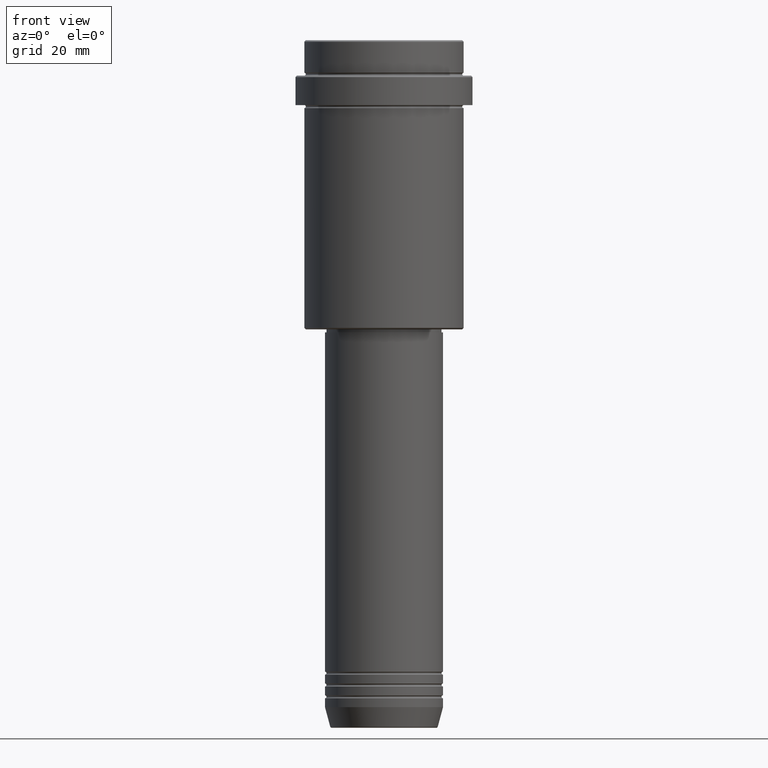
[diagram: clean part render]
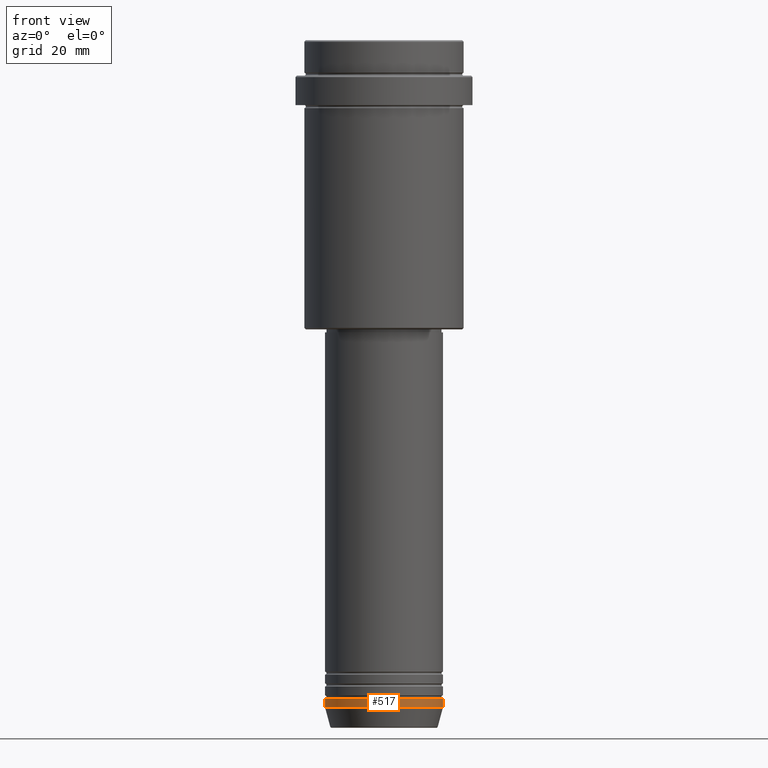
[diagram: same view with one face highlighted and labeled with its STEP entity id]
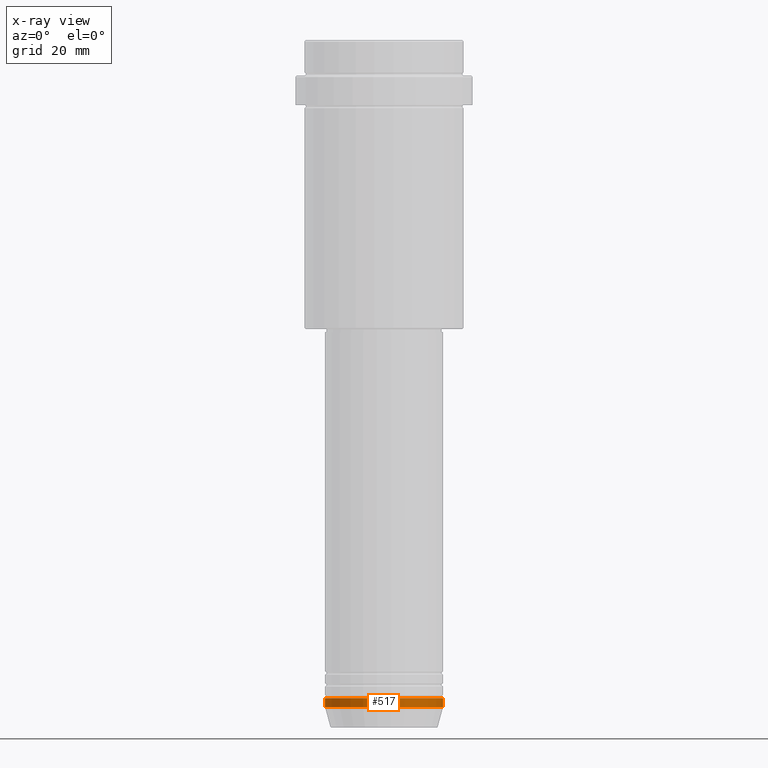
[diagram: x-ray of the same camera — body ghosted, the highlighted face saturated]
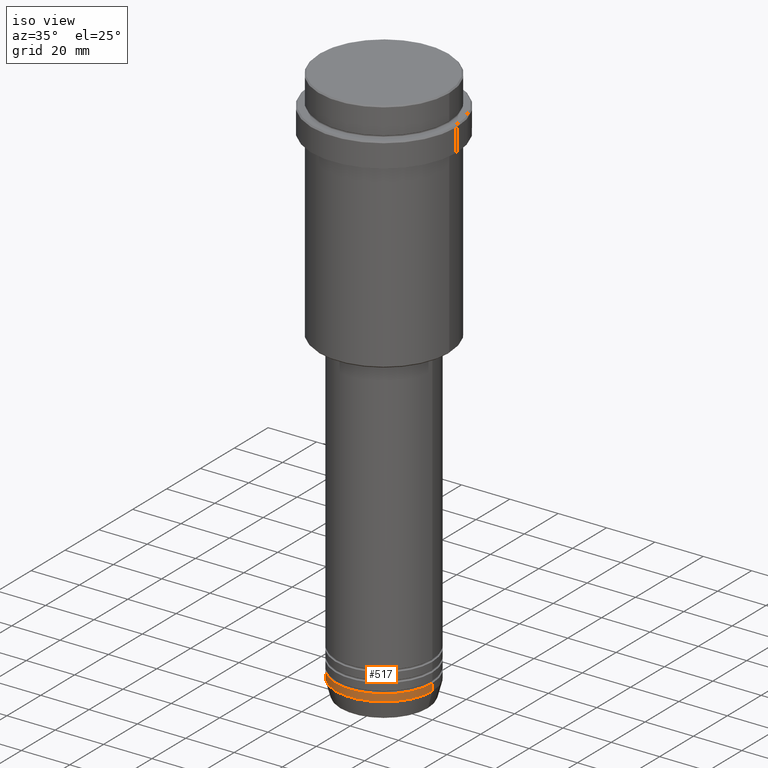
[diagram: same view with one face highlighted and labeled with its STEP entity id]
A machine part, front view. The second image highlights one B-rep face of the part: STEP entity #517.
The next image is the same camera in x-ray: the body ghosted, the highlighted face saturated — about 0% of this face is hidden behind the body in this view.
A second angle (iso view) of the same face is appended — the face is thin or edge-on in the first view.
In plain terms, the highlighted cylindrical surface (partial cylindrical patch) has radius 20 mm, axis along (-0, -0, 1).
Its self-contained STEP definition (entity closure, byte-faithful):
#35 = LINE ( 'NONE', #1352, #321 ) ;
#40 = VECTOR ( 'NONE', #359, 1000.000000000000000 ) ;
#52 = DIRECTION ( 'NONE',  ( 1.000000000000000000, 0.000000000000000000, 0.000000000000000000 ) ) ;
#161 = CIRCLE ( 'NONE', #524, 20.00000000000000000 ) ;
#212 = VERTEX_POINT ( 'NONE', #820 ) ;
#215 = CARTESIAN_POINT ( 'NONE',  ( 0.000000000000000000, 0.000000000000000000, 0.000000000000000000 ) ) ;
#217 = VERTEX_POINT ( 'NONE', #1343 ) ;
#232 = EDGE_CURVE ( 'NONE', #217, #212, #678, .T. ) ;
#286 = ORIENTED_EDGE ( 'NONE', *, *, #317, .T. ) ;
#317 = EDGE_CURVE ( 'NONE', #493, #680, #35, .T. ) ;
#321 = VECTOR ( 'NONE', #897, 1000.000000000000000 ) ;
#359 = DIRECTION ( 'NONE',  ( -0.000000000000000000, -0.000000000000000000, 1.000000000000000000 ) ) ;
#393 = CARTESIAN_POINT ( 'NONE',  ( 0.000000000000000000, 0.000000000000000000, -225.9999999999999716 ) ) ;
#424 = FACE_OUTER_BOUND ( 'NONE', #838, .T. ) ;
#464 = CARTESIAN_POINT ( 'NONE',  ( -20.00000000000000000, 2.449293598294706513E-15, 0.000000000000000000 ) ) ;
#493 = VERTEX_POINT ( 'NONE', #1308 ) ;
#506 = DIRECTION ( 'NONE',  ( 1.000000000000000000, 0.000000000000000000, 0.000000000000000000 ) ) ;
#517 = ADVANCED_FACE ( 'NONE', ( #424 ), #866, .T. ) ;
#524 = AXIS2_PLACEMENT_3D ( 'NONE', #933, #704, #52 ) ;
#589 = DIRECTION ( 'NONE',  ( -0.000000000000000000, -0.000000000000000000, 1.000000000000000000 ) ) ;
#651 = ORIENTED_EDGE ( 'NONE', *, *, #1223, .F. ) ;
#678 = LINE ( 'NONE', #464, #40 ) ;
#680 = VERTEX_POINT ( 'NONE', #1010 ) ;
#704 = DIRECTION ( 'NONE',  ( -0.000000000000000000, -0.000000000000000000, 1.000000000000000000 ) ) ;
#752 = DIRECTION ( 'NONE',  ( -0.000000000000000000, -0.000000000000000000, 1.000000000000000000 ) ) ;
#781 = AXIS2_PLACEMENT_3D ( 'NONE', #215, #752, #876 ) ;
#820 = CARTESIAN_POINT ( 'NONE',  ( -20.00000000000000000, 2.449293598294706513E-15, -222.9999999999999716 ) ) ;
#838 = EDGE_LOOP ( 'NONE', ( #1058, #844, #286, #651 ) ) ;
#844 = ORIENTED_EDGE ( 'NONE', *, *, #1242, .T. ) ;
#866 = CYLINDRICAL_SURFACE ( 'NONE', #781, 20.00000000000000000 ) ;
#876 = DIRECTION ( 'NONE',  ( 1.000000000000000000, 0.000000000000000000, 0.000000000000000000 ) ) ;
#897 = DIRECTION ( 'NONE',  ( -0.000000000000000000, -0.000000000000000000, 1.000000000000000000 ) ) ;
#903 = AXIS2_PLACEMENT_3D ( 'NONE', #393, #589, #506 ) ;
#933 = CARTESIAN_POINT ( 'NONE',  ( 0.000000000000000000, 0.000000000000000000, -222.9999999999999716 ) ) ;
#1010 = CARTESIAN_POINT ( 'NONE',  ( 20.00000000000000000, 0.000000000000000000, -222.9999999999999716 ) ) ;
#1038 = CIRCLE ( 'NONE', #903, 20.00000000000000000 ) ;
#1058 = ORIENTED_EDGE ( 'NONE', *, *, #232, .F. ) ;
#1223 = EDGE_CURVE ( 'NONE', #212, #680, #161, .T. ) ;
#1242 = EDGE_CURVE ( 'NONE', #217, #493, #1038, .T. ) ;
#1308 = CARTESIAN_POINT ( 'NONE',  ( 20.00000000000000000, 0.000000000000000000, -225.9999999999999716 ) ) ;
#1343 = CARTESIAN_POINT ( 'NONE',  ( -20.00000000000000000, 2.449293598294706513E-15, -225.9999999999999716 ) ) ;
#1352 = CARTESIAN_POINT ( 'NONE',  ( 20.00000000000000000, 0.000000000000000000, 0.000000000000000000 ) ) ;